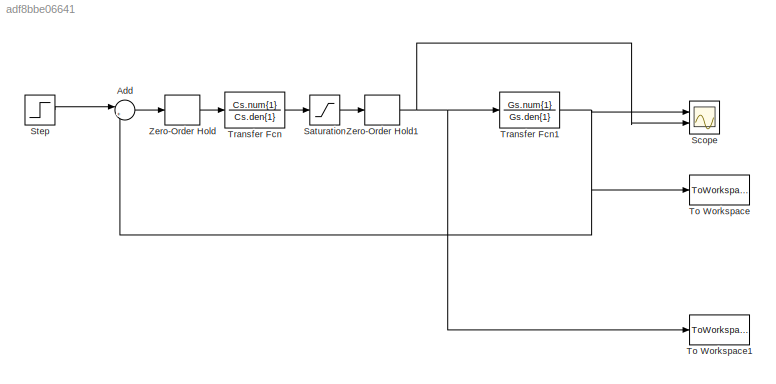
MODEL slx_adf8bbe06641
KIND model
CONFIG AbsTol = auto
CONFIG FixedStep = auto
CONFIG MaxStep = auto
CONFIG MinStep = auto
CONFIG RelTol = 1e-3
CONFIG SampleTimeConstraint = Unconstrained
CONFIG Solver = ode45
CONFIG SolverMode = Auto
CONFIG SolverName = ode45
CONFIG StartTime = 0.0
CONFIG StopTime = 10
BLOCK [Sum] Add
  IconShape = round
  InputSameDT = off
  Inputs = |+-
  OutDataTypeStr = Inherit: Inherit via internal rule
  Ports = [2, 1]
  SaturateOnIntegerOverflow = off
BLOCK [Saturate] Saturation
  InputPortMap = u0
  LowerLimit = -12
  Ports = [1, 1]
  UpperLimit = 12
BLOCK [Scope] Scope
  Floating = off
  LimitDataPoints = off
  NumInputPorts = 2
  Ports = [2]
  TimeRange = 20
  YMax = 10~15
  YMin = -8~-15
BLOCK [Step] Step
  SampleTime = 0
  Time = 0
BLOCK [ToWorkspace] To Workspace
  FixptAsFi = on
  MaxDataPoints = inf
  Ports = [1]
  SampleTime = h
  Save2DSignal = 3-D array (concatenate along third dimension)
  SaveFormat = Timeseries
  VariableName = output
BLOCK [ToWorkspace] To Workspace1
  FixptAsFi = on
  MaxDataPoints = inf
  Ports = [1]
  SampleTime = h
  Save2DSignal = 3-D array (concatenate along third dimension)
  SaveFormat = Timeseries
  VariableName = input
BLOCK [TransferFcn] Transfer Fcn
  Denominator = Cs.den{1}
  Numerator = Cs.num{1}
BLOCK [TransferFcn] Transfer Fcn1
  Denominator = Gs.den{1}
  Numerator = Gs.num{1}
BLOCK [ZeroOrderHold] Zero-Order Hold
  SampleTime = h
BLOCK [ZeroOrderHold] Zero-Order Hold1
  SampleTime = h
LINE Add:1 -> Zero-Order Hold:1
LINE Saturation:1 -> Zero-Order Hold1:1
LINE Step:1 -> Add:1
NET Transfer Fcn1:1 -> Add:2, Scope:1, To Workspace:1
LINE Transfer Fcn:1 -> Saturation:1
NET Zero-Order Hold1:1 -> Scope:2, To Workspace1:1, Transfer Fcn1:1
LINE Zero-Order Hold:1 -> Transfer Fcn:1
note: NET lines group one-source signal fan-out (src -> all destinations, sorted); 1:1 wires keep LINE
